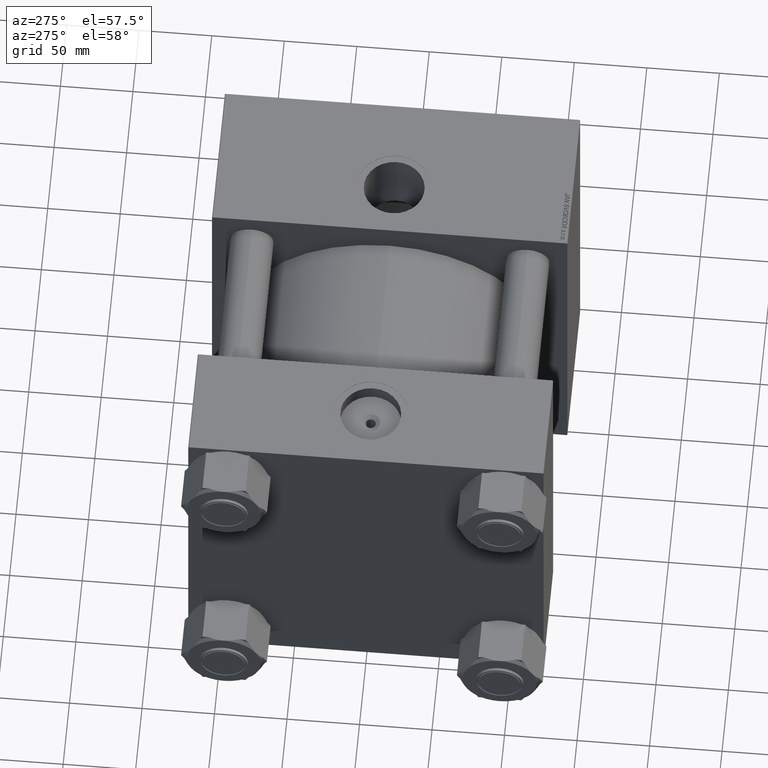
[diagram: clean part render]
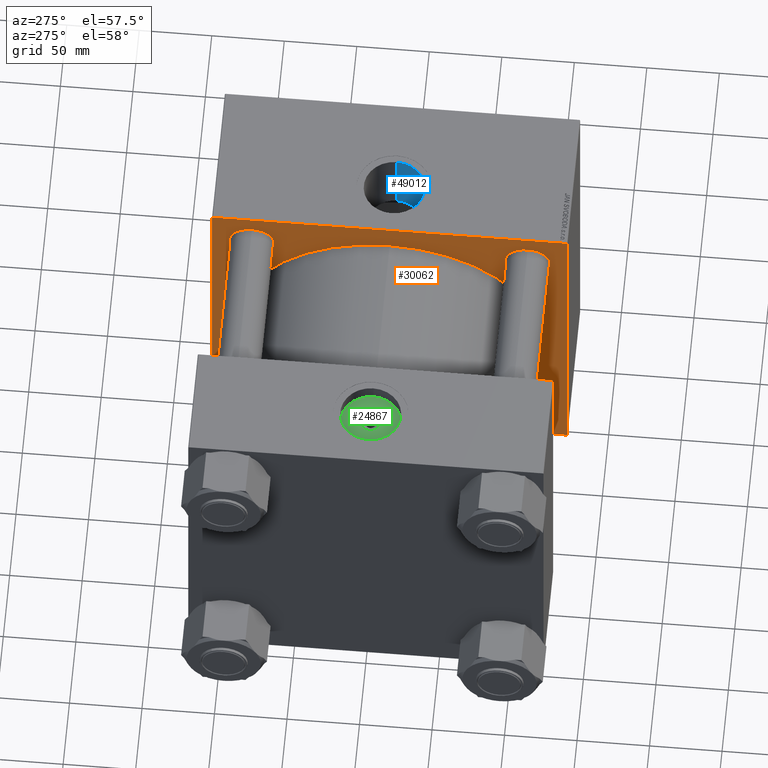
[diagram: same view with three faces highlighted in distinct colors, each labeled with its STEP entity id]
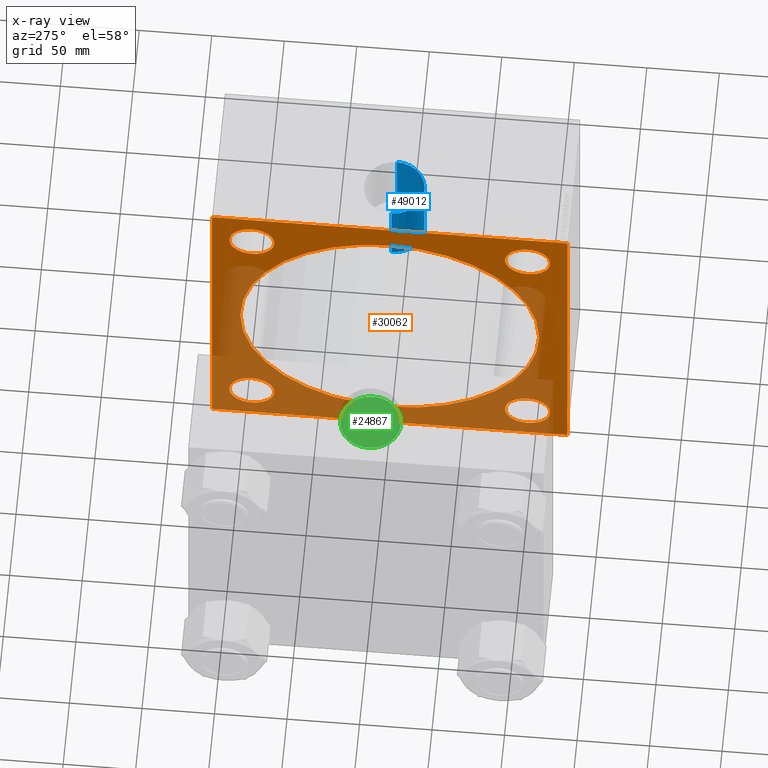
[diagram: x-ray of the same camera — body ghosted, the three highlighted faces saturated]
A machine part, auxiliary view with three faces highlighted in distinct colors.
The next image is the same camera in x-ray (body ghosted, the three faces saturated) — at least one of them is partly hidden behind the body in this view.
Their STEP definitions:

[orange] entity #30062 — the highlighted planar face has unit normal (-1, 0, 0).
#13 = EDGE_CURVE ( 'NONE', #2498, #2381, #9157, .T. ) ;
#227 = VERTEX_POINT ( 'NONE', #50983 ) ;
#559 = CIRCLE ( 'NONE', #25154, 15.50000000000000000 ) ;
#860 = EDGE_CURVE ( 'NONE', #17464, #38693, #7002, .T. ) ;
#2342 = ORIENTED_EDGE ( 'NONE', *, *, #860, .F. ) ;
#2381 = VERTEX_POINT ( 'NONE', #12859 ) ;
#2498 = VERTEX_POINT ( 'NONE', #30074 ) ;
#2747 = VECTOR ( 'NONE', #22340, 1000.000000000000114 ) ;
#2840 = CIRCLE ( 'NONE', #32541, 15.50000000000000000 ) ;
#3203 = DIRECTION ( 'NONE',  ( 0.000000000000000000, 0.000000000000000000, 1.000000000000000000 ) ) ;
#3824 = VECTOR ( 'NONE', #9534, 1000.000000000000000 ) ;
#3970 = DIRECTION ( 'NONE',  ( 0.000000000000000000, 0.000000000000000000, 1.000000000000000000 ) ) ;
#4055 = DIRECTION ( 'NONE',  ( 0.000000000000000000, 0.000000000000000000, 1.000000000000000000 ) ) ;
#5732 = DIRECTION ( 'NONE',  ( 0.000000000000000000, 0.000000000000000000, 1.000000000000000000 ) ) ;
#6446 = CIRCLE ( 'NONE', #40412, 15.50000000000000000 ) ;
#6452 = EDGE_CURVE ( 'NONE', #28850, #19836, #27134, .T. ) ;
#7002 = LINE ( 'NONE', #14705, #15999 ) ;
#7413 = DIRECTION ( 'NONE',  ( 1.000000000000000000, -0.000000000000000000, -0.000000000000000000 ) ) ;
#7641 = EDGE_CURVE ( 'NONE', #39300, #44572, #2840, .T. ) ;
#7656 = LINE ( 'NONE', #36346, #18664 ) ;
#7863 = VERTEX_POINT ( 'NONE', #20781 ) ;
#9157 = CIRCLE ( 'NONE', #16833, 15.50000000000000000 ) ;
#9326 = EDGE_LOOP ( 'NONE', ( #33349, #43950 ) ) ;
#9534 = DIRECTION ( 'NONE',  ( 0.000000000000000000, -5.664403186863042467E-17, -1.000000000000000000 ) ) ;
#9949 = CARTESIAN_POINT ( 'NONE',  ( 188.0000000000000000, -122.2500000000000000, 122.2500000000000000 ) ) ;
#9986 = CARTESIAN_POINT ( 'NONE',  ( 188.0000000000000000, 95.09999999999999432, -95.09999999999998010 ) ) ;
#10356 = DIRECTION ( 'NONE',  ( 1.000000000000000000, -0.000000000000000000, -0.000000000000000000 ) ) ;
#11048 = CARTESIAN_POINT ( 'NONE',  ( 188.0000000000000000, -2.602085213965210642E-15, 103.0000000000000000 ) ) ;
#11408 = CARTESIAN_POINT ( 'NONE',  ( 188.0000000000000000, -95.09999999999996589, -95.10000000000000853 ) ) ;
#11630 = AXIS2_PLACEMENT_3D ( 'NONE', #37807, #45513, #41273 ) ;
#11937 = AXIS2_PLACEMENT_3D ( 'NONE', #22736, #47173, #5732 ) ;
#12162 = ORIENTED_EDGE ( 'NONE', *, *, #18720, .T. ) ;
#12398 = CARTESIAN_POINT ( 'NONE',  ( 188.0000000000000000, 122.4999999999999716, -122.5000000000000000 ) ) ;
#12859 = CARTESIAN_POINT ( 'NONE',  ( 188.0000000000000000, 95.09999999999999432, 110.5999999999999801 ) ) ;
#13534 = CARTESIAN_POINT ( 'NONE',  ( 188.0000000000000000, -122.5000000000000000, 122.4999999999999858 ) ) ;
#14705 = CARTESIAN_POINT ( 'NONE',  ( 188.0000000000000000, 122.4999999999999716, 122.5000000000000142 ) ) ;
#14865 = EDGE_CURVE ( 'NONE', #7863, #227, #49670, .T. ) ;
#15212 = ORIENTED_EDGE ( 'NONE', *, *, #6452, .T. ) ;
#15999 = VECTOR ( 'NONE', #31713, 1000.000000000000000 ) ;
#16387 = VECTOR ( 'NONE', #39618, 1000.000000000000000 ) ;
#16659 = CARTESIAN_POINT ( 'NONE',  ( 188.0000000000000000, 95.09999999999999432, -79.59999999999998010 ) ) ;
#16774 = CARTESIAN_POINT ( 'NONE',  ( 188.0000000000000000, 121.9999999999999716, -122.5000000000000000 ) ) ;
#16833 = AXIS2_PLACEMENT_3D ( 'NONE', #26314, #47046, #26047 ) ;
#17464 = VERTEX_POINT ( 'NONE', #42880 ) ;
#17953 = DIRECTION ( 'NONE',  ( 0.000000000000000000, 0.000000000000000000, 1.000000000000000000 ) ) ;
#18079 = CARTESIAN_POINT ( 'NONE',  ( 188.0000000000000000, 122.2499999999999858, 122.2499999999999858 ) ) ;
#18664 = VECTOR ( 'NONE', #35560, 1000.000000000000000 ) ;
#18720 = EDGE_CURVE ( 'NONE', #45364, #48017, #26895, .T. ) ;
#18882 = LINE ( 'NONE', #18079, #2747 ) ;
#19220 = CARTESIAN_POINT ( 'NONE',  ( 188.0000000000000000, -122.5000000000000000, 122.0000000000000426 ) ) ;
#19836 = VERTEX_POINT ( 'NONE', #43145 ) ;
#19882 = CARTESIAN_POINT ( 'NONE',  ( 188.0000000000000000, -95.09999999999996589, -95.10000000000000853 ) ) ;
#19988 = ORIENTED_EDGE ( 'NONE', *, *, #31885, .T. ) ;
#20103 = ORIENTED_EDGE ( 'NONE', *, *, #22927, .T. ) ;
#20781 = CARTESIAN_POINT ( 'NONE',  ( 188.0000000000000000, -95.09999999999996589, -79.60000000000000853 ) ) ;
#20875 = EDGE_CURVE ( 'NONE', #227, #7863, #40565, .T. ) ;
#20882 = VECTOR ( 'NONE', #39807, 999.9999999999998863 ) ;
#21452 = VERTEX_POINT ( 'NONE', #34260 ) ;
#22340 = DIRECTION ( 'NONE',  ( 0.000000000000000000, 0.7071067811865474617, -0.7071067811865474617 ) ) ;
#22641 = EDGE_LOOP ( 'NONE', ( #37048, #24025, #40934, #20103, #2342, #45150, #15212, #24263 ) ) ;
#22681 = AXIS2_PLACEMENT_3D ( 'NONE', #34781, #7413, #39827 ) ;
#22684 = EDGE_CURVE ( 'NONE', #49568, #21452, #45059, .T. ) ;
#22736 = CARTESIAN_POINT ( 'NONE',  ( 188.0000000000000000, 0.000000000000000000, 0.000000000000000000 ) ) ;
#22886 = CARTESIAN_POINT ( 'NONE',  ( 188.0000000000000000, 1.001177681725252697E-14, -103.0000000000000000 ) ) ;
#22927 = EDGE_CURVE ( 'NONE', #41512, #38693, #46345, .T. ) ;
#23237 = EDGE_LOOP ( 'NONE', ( #37209, #35103 ) ) ;
#24025 = ORIENTED_EDGE ( 'NONE', *, *, #29815, .T. ) ;
#24263 = ORIENTED_EDGE ( 'NONE', *, *, #41093, .T. ) ;
#25016 = CARTESIAN_POINT ( 'NONE',  ( 188.0000000000000000, -122.5000000000000142, -122.0000000000000995 ) ) ;
#25154 = AXIS2_PLACEMENT_3D ( 'NONE', #34811, #10356, #3203 ) ;
#26047 = DIRECTION ( 'NONE',  ( 0.000000000000000000, 0.000000000000000000, 1.000000000000000000 ) ) ;
#26149 = DIRECTION ( 'NONE',  ( -0.000000000000000000, 0.7071067811865474617, 0.7071067811865474617 ) ) ;
#26314 = CARTESIAN_POINT ( 'NONE',  ( 188.0000000000000000, 95.09999999999999432, 95.09999999999998010 ) ) ;
#26895 = CIRCLE ( 'NONE', #11630, 103.0000000000000000 ) ;
#27051 = CARTESIAN_POINT ( 'NONE',  ( 188.0000000000000000, 122.2500000000016911, -122.2499999999982947 ) ) ;
#27134 = LINE ( 'NONE', #43336, #16387 ) ;
#27364 = AXIS2_PLACEMENT_3D ( 'NONE', #41558, #49294, #38085 ) ;
#27905 = VECTOR ( 'NONE', #26149, 1000.000000000000114 ) ;
#28233 = CARTESIAN_POINT ( 'NONE',  ( 188.0000000000000000, -95.09999999999996589, 95.10000000000000853 ) ) ;
#28526 = VERTEX_POINT ( 'NONE', #25016 ) ;
#28850 = VERTEX_POINT ( 'NONE', #31559 ) ;
#29815 = EDGE_CURVE ( 'NONE', #21452, #28526, #7656, .T. ) ;
#30062 = ADVANCED_FACE ( 'NONE', ( #34149, #30961, #42123, #34694, #42390, #46903 ), #30165, .T. ) ;
#30071 = EDGE_LOOP ( 'NONE', ( #12162, #42042 ) ) ;
#30074 = CARTESIAN_POINT ( 'NONE',  ( 188.0000000000000000, 95.09999999999999432, 79.59999999999998010 ) ) ;
#30165 = PLANE ( 'NONE',  #11937 ) ;
#30495 = ORIENTED_EDGE ( 'NONE', *, *, #41858, .T. ) ;
#30961 = FACE_BOUND ( 'NONE', #9326, .T. ) ;
#31559 = CARTESIAN_POINT ( 'NONE',  ( 188.0000000000000000, 122.4999999999999716, 122.0000000000000142 ) ) ;
#31713 = DIRECTION ( 'NONE',  ( 0.000000000000000000, -1.000000000000000000, -1.132880637372608986E-16 ) ) ;
#31885 = EDGE_CURVE ( 'NONE', #45002, #39047, #34015, .T. ) ;
#32030 = CIRCLE ( 'NONE', #22681, 15.50000000000000000 ) ;
#32372 = DIRECTION ( 'NONE',  ( 0.000000000000000000, 0.000000000000000000, 1.000000000000000000 ) ) ;
#32541 = AXIS2_PLACEMENT_3D ( 'NONE', #39931, #40186, #43896 ) ;
#32551 = EDGE_CURVE ( 'NONE', #48017, #45364, #46836, .T. ) ;
#32835 = ORIENTED_EDGE ( 'NONE', *, *, #41284, .T. ) ;
#33000 = EDGE_CURVE ( 'NONE', #17464, #28850, #18882, .T. ) ;
#33192 = CARTESIAN_POINT ( 'NONE',  ( 188.0000000000000000, -95.09999999999996589, 79.60000000000000853 ) ) ;
#33349 = ORIENTED_EDGE ( 'NONE', *, *, #47297, .T. ) ;
#34015 = CIRCLE ( 'NONE', #51877, 15.50000000000000000 ) ;
#34149 = FACE_BOUND ( 'NONE', #43182, .T. ) ;
#34260 = CARTESIAN_POINT ( 'NONE',  ( 188.0000000000000000, -122.0000000000000000, -122.5000000000000853 ) ) ;
#34422 = DIRECTION ( 'NONE',  ( 1.000000000000000000, -0.000000000000000000, -0.000000000000000000 ) ) ;
#34495 = LINE ( 'NONE', #13534, #3824 ) ;
#34694 = FACE_BOUND ( 'NONE', #23237, .T. ) ;
#34781 = CARTESIAN_POINT ( 'NONE',  ( 188.0000000000000000, 95.09999999999999432, 95.09999999999998010 ) ) ;
#34811 = CARTESIAN_POINT ( 'NONE',  ( 188.0000000000000000, -95.09999999999996589, 95.10000000000000853 ) ) ;
#35103 = ORIENTED_EDGE ( 'NONE', *, *, #20875, .T. ) ;
#35415 = DIRECTION ( 'NONE',  ( 1.000000000000000000, -0.000000000000000000, -0.000000000000000000 ) ) ;
#35560 = DIRECTION ( 'NONE',  ( 0.000000000000000000, -0.7071067811865671127, 0.7071067811865279218 ) ) ;
#36346 = CARTESIAN_POINT ( 'NONE',  ( 188.0000000000000000, -122.2499999999966462, -122.2500000000034390 ) ) ;
#37048 = ORIENTED_EDGE ( 'NONE', *, *, #22684, .T. ) ;
#37209 = ORIENTED_EDGE ( 'NONE', *, *, #14865, .T. ) ;
#37807 = CARTESIAN_POINT ( 'NONE',  ( 188.0000000000000000, -2.602085213965210642E-15, 0.000000000000000000 ) ) ;
#37969 = EDGE_CURVE ( 'NONE', #41512, #28526, #34495, .T. ) ;
#38085 = DIRECTION ( 'NONE',  ( 0.000000000000000000, 0.000000000000000000, -1.000000000000000000 ) ) ;
#38693 = VERTEX_POINT ( 'NONE', #46850 ) ;
#39047 = VERTEX_POINT ( 'NONE', #41409 ) ;
#39300 = VERTEX_POINT ( 'NONE', #16659 ) ;
#39415 = CARTESIAN_POINT ( 'NONE',  ( 188.0000000000000000, 95.09999999999999432, -110.5999999999999801 ) ) ;
#39618 = DIRECTION ( 'NONE',  ( 0.000000000000000000, 0.000000000000000000, -1.000000000000000000 ) ) ;
#39807 = DIRECTION ( 'NONE',  ( -0.000000000000000000, -0.7071067811865376918, -0.7071067811865574537 ) ) ;
#39827 = DIRECTION ( 'NONE',  ( 0.000000000000000000, 0.000000000000000000, 1.000000000000000000 ) ) ;
#39931 = CARTESIAN_POINT ( 'NONE',  ( 188.0000000000000000, 95.09999999999999432, -95.09999999999998010 ) ) ;
#40186 = DIRECTION ( 'NONE',  ( 1.000000000000000000, -0.000000000000000000, -0.000000000000000000 ) ) ;
#40341 = AXIS2_PLACEMENT_3D ( 'NONE', #19882, #52574, #32372 ) ;
#40366 = DIRECTION ( 'NONE',  ( 1.000000000000000000, -0.000000000000000000, -0.000000000000000000 ) ) ;
#40412 = AXIS2_PLACEMENT_3D ( 'NONE', #9986, #34422, #17953 ) ;
#40565 = CIRCLE ( 'NONE', #47344, 15.50000000000000000 ) ;
#40934 = ORIENTED_EDGE ( 'NONE', *, *, #37969, .F. ) ;
#41093 = EDGE_CURVE ( 'NONE', #19836, #49568, #47513, .T. ) ;
#41273 = DIRECTION ( 'NONE',  ( 0.000000000000000000, 0.000000000000000000, -1.000000000000000000 ) ) ;
#41284 = EDGE_CURVE ( 'NONE', #44572, #39300, #6446, .T. ) ;
#41329 = DIRECTION ( 'NONE',  ( 0.000000000000000000, -1.000000000000000000, -3.398641912117826466E-16 ) ) ;
#41409 = CARTESIAN_POINT ( 'NONE',  ( 188.0000000000000000, -95.09999999999996589, 110.6000000000000085 ) ) ;
#41512 = VERTEX_POINT ( 'NONE', #19220 ) ;
#41558 = CARTESIAN_POINT ( 'NONE',  ( 188.0000000000000000, -2.602085213965210642E-15, 0.000000000000000000 ) ) ;
#41858 = EDGE_CURVE ( 'NONE', #39047, #45002, #559, .T. ) ;
#42042 = ORIENTED_EDGE ( 'NONE', *, *, #32551, .T. ) ;
#42123 = FACE_BOUND ( 'NONE', #50023, .T. ) ;
#42390 = FACE_BOUND ( 'NONE', #30071, .T. ) ;
#42880 = CARTESIAN_POINT ( 'NONE',  ( 188.0000000000000000, 121.9999999999999716, 122.5000000000000142 ) ) ;
#43145 = CARTESIAN_POINT ( 'NONE',  ( 188.0000000000000000, 122.4999999999999716, -121.9999999999999858 ) ) ;
#43182 = EDGE_LOOP ( 'NONE', ( #30495, #19988 ) ) ;
#43336 = CARTESIAN_POINT ( 'NONE',  ( 188.0000000000000000, 122.4999999999999716, 122.5000000000000142 ) ) ;
#43896 = DIRECTION ( 'NONE',  ( 0.000000000000000000, 0.000000000000000000, 1.000000000000000000 ) ) ;
#43950 = ORIENTED_EDGE ( 'NONE', *, *, #13, .T. ) ;
#44572 = VERTEX_POINT ( 'NONE', #39415 ) ;
#44879 = VECTOR ( 'NONE', #41329, 1000.000000000000000 ) ;
#45002 = VERTEX_POINT ( 'NONE', #33192 ) ;
#45059 = LINE ( 'NONE', #12398, #44879 ) ;
#45150 = ORIENTED_EDGE ( 'NONE', *, *, #33000, .T. ) ;
#45364 = VERTEX_POINT ( 'NONE', #11048 ) ;
#45513 = DIRECTION ( 'NONE',  ( 1.000000000000000000, 0.000000000000000000, 0.000000000000000000 ) ) ;
#46283 = ORIENTED_EDGE ( 'NONE', *, *, #7641, .T. ) ;
#46345 = LINE ( 'NONE', #9949, #27905 ) ;
#46836 = CIRCLE ( 'NONE', #27364, 103.0000000000000000 ) ;
#46850 = CARTESIAN_POINT ( 'NONE',  ( 188.0000000000000000, -122.0000000000000568, 122.4999999999999858 ) ) ;
#46903 = FACE_OUTER_BOUND ( 'NONE', #22641, .T. ) ;
#47046 = DIRECTION ( 'NONE',  ( 1.000000000000000000, -0.000000000000000000, -0.000000000000000000 ) ) ;
#47173 = DIRECTION ( 'NONE',  ( -1.000000000000000000, 0.000000000000000000, 0.000000000000000000 ) ) ;
#47297 = EDGE_CURVE ( 'NONE', #2381, #2498, #32030, .T. ) ;
#47344 = AXIS2_PLACEMENT_3D ( 'NONE', #11408, #40366, #3970 ) ;
#47513 = LINE ( 'NONE', #27051, #20882 ) ;
#48017 = VERTEX_POINT ( 'NONE', #22886 ) ;
#49294 = DIRECTION ( 'NONE',  ( 1.000000000000000000, 0.000000000000000000, 0.000000000000000000 ) ) ;
#49568 = VERTEX_POINT ( 'NONE', #16774 ) ;
#49670 = CIRCLE ( 'NONE', #40341, 15.50000000000000000 ) ;
#50023 = EDGE_LOOP ( 'NONE', ( #46283, #32835 ) ) ;
#50983 = CARTESIAN_POINT ( 'NONE',  ( 188.0000000000000000, -95.09999999999996589, -110.6000000000000085 ) ) ;
#51877 = AXIS2_PLACEMENT_3D ( 'NONE', #28233, #35415, #4055 ) ;
#52574 = DIRECTION ( 'NONE',  ( 1.000000000000000000, -0.000000000000000000, -0.000000000000000000 ) ) ;

[blue] entity #49012 — the highlighted cylindrical surface (edge-blend (fillet) strip) has radius 20.96 mm, axis along (0, 0, -1).
#284 = CARTESIAN_POINT ( 'NONE',  ( 221.6212996415953000, -20.96019710479842857, 69.92617633883915573 ) ) ;
#805 = CARTESIAN_POINT ( 'NONE',  ( 210.2230388352013790, -16.62934786940848753, 71.08207608813650324 ) ) ;
#917 = VERTEX_POINT ( 'NONE', #50856 ) ;
#1312 = CARTESIAN_POINT ( 'NONE',  ( 242.0935977153022520, -8.673164555340028059, 72.48572227582828020 ) ) ;
#3488 = CARTESIAN_POINT ( 'NONE',  ( 202.0399999999999636, -1.387778780781445991E-14, 145.2999999999999829 ) ) ;
#4272 = CARTESIAN_POINT ( 'NONE',  ( 228.4601454297183238, -20.28258136509749932, 70.12628231920038502 ) ) ;
#4528 = CARTESIAN_POINT ( 'NONE',  ( 212.4913322302871279, -18.18753989658438996, 70.70244160941379619 ) ) ;
#4784 = CARTESIAN_POINT ( 'NONE',  ( 215.5893671943640015, -19.61814360589775674, 70.31502298797768447 ) ) ;
#5041 = CARTESIAN_POINT ( 'NONE',  ( 233.5290929603473842, -18.17440030520087291, 70.70571288897384932 ) ) ;
#5646 = AXIS2_PLACEMENT_3D ( 'NONE', #26926, #30905, #47390 ) ;
#6355 = FACE_OUTER_BOUND ( 'NONE', #14480, .T. ) ;
#6888 = DIRECTION ( 'NONE',  ( -1.000000000000000000, 0.000000000000000000, 0.000000000000000000 ) ) ;
#7152 = CARTESIAN_POINT ( 'NONE',  ( 222.9999999999999716, -1.387778780781445991E-14, 145.2999999999999829 ) ) ;
#7416 = B_SPLINE_CURVE_WITH_KNOTS ( 'NONE', 3,
 ( #36942, #49418, #37705, #41437, #45155, #24461, #8765, #1312, #17507, #16748, #32946, #24721, #9290, #25488, #37457, #33717, #49936, #5041, #29727, #28958, #4272, #20479, #9022, #28703, #36683, #284, #24974, #48907, #20991, #41172, #44903, #16491, #4784, #8512, #4528, #37196, #805, #25234, #17007, #13015, #30509, #14310, #14044, #33978, #46719, #22821, #51250, #35035, #22029, #25989, #50192, #10057 ),
 .UNSPECIFIED., .F., .F.,
 ( 4, 2, 2, 2, 2, 2, 2, 2, 2, 2, 2, 2, 2, 2, 2, 2, 2, 2, 2, 2, 2, 2, 2, 2, 2, 4 ),
 ( 0.06587899507149015677, 0.06793715541813938330, 0.06999531576478862371, 0.07411163645808710454, 0.07616979680473633108, 0.07822795715138555761, 0.08234427784468399680, 0.08440243819133318171, 0.08646059853798238048, 0.09057691923128075029, 0.09469323992457913397, 0.09675140027122831887, 0.09880956061787751765, 0.1029258813111758042, 0.1039549614845003411, 0.1049840416578248781, 0.1070422020044740075, 0.1111585226977722107, 0.1132166830444213124, 0.1152748433910704140, 0.1173330037377195156, 0.1193911640843686034, 0.1235074847776668067, 0.1255656451243159222, 0.1276238054709650238, 0.1317401261642632271 ),
 .UNSPECIFIED. ) ;
#8512 = CARTESIAN_POINT ( 'NONE',  ( 213.6952659423795353, -18.83117820539490950, 70.53143123999750230 ) ) ;
#8765 = CARTESIAN_POINT ( 'NONE',  ( 242.8807134585548511, -6.778603163634969064, 72.69570419330156597 ) ) ;
#9022 = CARTESIAN_POINT ( 'NONE',  ( 225.7671570199753148, -20.78801810710769260, 69.97759226753588280 ) ) ;
#9290 = CARTESIAN_POINT ( 'NONE',  ( 238.7905222449937810, -13.85099797244058628, 71.68071556930685517 ) ) ;
#9808 = EDGE_CURVE ( 'NONE', #31472, #917, #7416, .T. ) ;
#10057 = CARTESIAN_POINT ( 'NONE',  ( 202.0399999999999636, -1.610560222933687567E-14, 73.00000000000000000 ) ) ;
#10372 = EDGE_CURVE ( 'NONE', #38370, #917, #23131, .T. ) ;
#11440 = VECTOR ( 'NONE', #19690, 1000.000000000000000 ) ;
#13015 = CARTESIAN_POINT ( 'NONE',  ( 207.7051294626758704, -14.34747993836448288, 71.57786219154903051 ) ) ;
#14044 = CARTESIAN_POINT ( 'NONE',  ( 205.9649601165576485, -12.23101393647206514, 71.97037141782094238 ) ) ;
#14310 = CARTESIAN_POINT ( 'NONE',  ( 206.3777873889842738, -12.78639808919218801, 71.87347892161744767 ) ) ;
#14480 = EDGE_LOOP ( 'NONE', ( #34318, #50334, #46542, #47851 ) ) ;
#16491 = CARTESIAN_POINT ( 'NONE',  ( 216.2355398758888043, -19.85048979358304777, 70.24956875561315428 ) ) ;
#16748 = CARTESIAN_POINT ( 'NONE',  ( 241.1490998918291950, -10.50745506157026732, 72.24243353826487635 ) ) ;
#17007 = CARTESIAN_POINT ( 'NONE',  ( 208.6664467950246262, -15.30792271522880910, 71.37862452190249485 ) ) ;
#17507 = CARTESIAN_POINT ( 'NONE',  ( 241.8000542513875644, -9.292706758496022346, 72.40871091589835373 ) ) ;
#19690 = DIRECTION ( 'NONE',  ( 0.000000000000000000, 0.000000000000000000, -1.000000000000000000 ) ) ;
#20479 = CARTESIAN_POINT ( 'NONE',  ( 226.4463742243460445, -20.68605275160370738, 70.00790574102234132 ) ) ;
#20991 = CARTESIAN_POINT ( 'NONE',  ( 218.2334663649609183, -20.41375042419390695, 70.08770552287961664 ) ) ;
#21917 = EDGE_CURVE ( 'NONE', #32106, #31472, #35269, .T. ) ;
#22029 = CARTESIAN_POINT ( 'NONE',  ( 202.5821455851781820, -4.786000650757876507, 72.84607350777257295 ) ) ;
#22303 = DIRECTION ( 'NONE',  ( 0.000000000000000000, 0.000000000000000000, -1.000000000000000000 ) ) ;
#22821 = CARTESIAN_POINT ( 'NONE',  ( 203.3891219195750750, -7.429881023423288156, 72.62369188978864543 ) ) ;
#23131 = LINE ( 'NONE', #3488, #11440 ) ;
#23394 = CARTESIAN_POINT ( 'NONE',  ( 243.9599999999999795, -1.131092811680160736E-14, 122.2999999999999972 ) ) ;
#24441 = AXIS2_PLACEMENT_3D ( 'NONE', #7152, #22303, #6888 ) ;
#24461 = CARTESIAN_POINT ( 'NONE',  ( 243.2817238645624798, -5.468000323589479628, 72.80768269049441699 ) ) ;
#24721 = CARTESIAN_POINT ( 'NONE',  ( 239.6532372683194581, -12.80064943333325189, 71.87812324548927734 ) ) ;
#24974 = CARTESIAN_POINT ( 'NONE',  ( 220.2560640078206973, -20.82509494167162245, 69.96709075955770629 ) ) ;
#25234 = CARTESIAN_POINT ( 'NONE',  ( 209.1698886108219142, -15.76432574300271483, 71.27890841918058129 ) ) ;
#25488 = CARTESIAN_POINT ( 'NONE',  ( 237.3407223674005309, -15.30139099499403521, 71.38004774415902887 ) ) ;
#25989 = CARTESIAN_POINT ( 'NONE',  ( 202.1774154441112046, -2.762878381059121313, 72.96020431692140562 ) ) ;
#26926 = CARTESIAN_POINT ( 'NONE',  ( 222.9999999999999716, -1.387778780781445991E-14, 122.2999999999999972 ) ) ;
#28295 = CARTESIAN_POINT ( 'NONE',  ( 243.9599999999999795, 8.939817063969891153E-15, 73.00000000000000000 ) ) ;
#28703 = CARTESIAN_POINT ( 'NONE',  ( 224.3923027695314545, -20.92511285017575773, 69.93671974428271199 ) ) ;
#28958 = CARTESIAN_POINT ( 'NONE',  ( 229.7716453533519996, -19.88422182655822112, 70.24187966245939663 ) ) ;
#29727 = CARTESIAN_POINT ( 'NONE',  ( 232.3276446205177592, -18.82106543936009402, 70.53418626375813005 ) ) ;
#30509 = CARTESIAN_POINT ( 'NONE',  ( 207.2472530390070915, -13.84344217902598295, 71.67738874308588493 ) ) ;
#30905 = DIRECTION ( 'NONE',  ( -0.000000000000000000, -0.000000000000000000, -1.000000000000000000 ) ) ;
#31472 = VERTEX_POINT ( 'NONE', #28295 ) ;
#32106 = VERTEX_POINT ( 'NONE', #23394 ) ;
#32946 = CARTESIAN_POINT ( 'NONE',  ( 240.7934863802372263, -11.09863851081829367, 72.15365915882848924 ) ) ;
#33717 = CARTESIAN_POINT ( 'NONE',  ( 235.7710887859448974, -16.63397089278883101, 71.08100482846708701 ) ) ;
#33978 = CARTESIAN_POINT ( 'NONE',  ( 204.8222132668303175, -10.52446732438173171, 72.24654900596358686 ) ) ;
#34318 = ORIENTED_EDGE ( 'NONE', *, *, #46452, .F. ) ;
#35035 = CARTESIAN_POINT ( 'NONE',  ( 202.7504044797549057, -5.454963779267728796, 72.79894665177256741 ) ) ;
#35269 = LINE ( 'NONE', #51215, #38874 ) ;
#36683 = CARTESIAN_POINT ( 'NONE',  ( 223.6938400997032943, -20.95990112699987051, 69.92626505653647939 ) ) ;
#36942 = CARTESIAN_POINT ( 'NONE',  ( 243.9599999999999795, 8.939817063969891153E-15, 73.00000000000000000 ) ) ;
#37196 = CARTESIAN_POINT ( 'NONE',  ( 210.7740666760411443, -17.03885063037197511, 70.98473803185774500 ) ) ;
#37457 = CARTESIAN_POINT ( 'NONE',  ( 236.8286780104702416, -15.76570204346668547, 71.27861442370591760 ) ) ;
#37705 = CARTESIAN_POINT ( 'NONE',  ( 243.9263940180627799, -1.371452482010626639, 72.99032939255260999 ) ) ;
#37899 = CARTESIAN_POINT ( 'NONE',  ( 202.0399999999999636, -1.387778780781445991E-14, 122.2999999999999972 ) ) ;
#38370 = VERTEX_POINT ( 'NONE', #37899 ) ;
#38874 = VECTOR ( 'NONE', #47489, 1000.000000000000000 ) ;
#40489 = CIRCLE ( 'NONE', #5646, 20.96000000000000796 ) ;
#41172 = CARTESIAN_POINT ( 'NONE',  ( 217.5630264307337143, -20.24550240627127451, 70.13649053211051410 ) ) ;
#41437 = CARTESIAN_POINT ( 'NONE',  ( 243.7914293043783971, -2.740678016597591693, 72.95174947013322253 ) ) ;
#44903 = CARTESIAN_POINT ( 'NONE',  ( 217.2279452956803425, -20.15253212239845482, 70.16328393757225967 ) ) ;
#45155 = CARTESIAN_POINT ( 'NONE',  ( 243.6896154434917037, -3.426784267314502141, 72.92270957088685179 ) ) ;
#46452 = EDGE_CURVE ( 'NONE', #32106, #38370, #40489, .T. ) ;
#46542 = ORIENTED_EDGE ( 'NONE', *, *, #9808, .T. ) ;
#46719 = CARTESIAN_POINT ( 'NONE',  ( 204.1785217651144251, -9.324475399923368713, 72.41318375418211417 ) ) ;
#47004 = CYLINDRICAL_SURFACE ( 'NONE', #24441, 20.96000000000000796 ) ;
#47390 = DIRECTION ( 'NONE',  ( 1.000000000000000000, 0.000000000000000000, 0.000000000000000000 ) ) ;
#47489 = DIRECTION ( 'NONE',  ( 0.000000000000000000, 0.000000000000000000, -1.000000000000000000 ) ) ;
#47851 = ORIENTED_EDGE ( 'NONE', *, *, #10372, .F. ) ;
#48907 = CARTESIAN_POINT ( 'NONE',  ( 218.5697173171924703, -20.48932540627172116, 70.06562953716161246 ) ) ;
#49012 = ADVANCED_FACE ( 'NONE', ( #6355 ), #47004, .F. ) ;
#49418 = CARTESIAN_POINT ( 'NONE',  ( 243.9600000000001216, -0.6860956652081730001, 73.00000000000001421 ) ) ;
#49936 = CARTESIAN_POINT ( 'NONE',  ( 235.2240939491740335, -17.03981758637977606, 70.98447916284816017 ) ) ;
#50192 = CARTESIAN_POINT ( 'NONE',  ( 202.0400000000000205, -1.392399180500920375, 73.00000000000001421 ) ) ;
#50334 = ORIENTED_EDGE ( 'NONE', *, *, #21917, .T. ) ;
#50856 = CARTESIAN_POINT ( 'NONE',  ( 202.0399999999999636, -1.610560222933687567E-14, 73.00000000000000000 ) ) ;
#51215 = CARTESIAN_POINT ( 'NONE',  ( 243.9599999999999795, -1.131092811680160736E-14, 145.2999999999999829 ) ) ;
#51250 = CARTESIAN_POINT ( 'NONE',  ( 203.1553683602674027, -6.781839252738032897, 72.68734360114403614 ) ) ;

[green] entity #24867 — the highlighted planar face has unit normal (0, 0, 1).
#730 = DIRECTION ( 'NONE',  ( 1.000000000000000000, 0.000000000000000000, 0.000000000000000000 ) ) ;
#1262 = AXIS2_PLACEMENT_3D ( 'NONE', #4065, #20278, #36481 ) ;
#1973 = ORIENTED_EDGE ( 'NONE', *, *, #19045, .T. ) ;
#2526 = AXIS2_PLACEMENT_3D ( 'NONE', #49400, #12992, #29439 ) ;
#4065 = CARTESIAN_POINT ( 'NONE',  ( 38.00000000000000000, -2.255140518769849538E-14, 111.6999999999999886 ) ) ;
#4736 = VERTEX_POINT ( 'NONE', #14288 ) ;
#6023 = CIRCLE ( 'NONE', #12803, 6.640000000000028102 ) ;
#6819 = CARTESIAN_POINT ( 'NONE',  ( 17.03999999999999915, -1.998454549668564441E-14, 111.6999999999999886 ) ) ;
#8950 = CARTESIAN_POINT ( 'NONE',  ( 58.96000000000000085, -2.255140518769849538E-14, 111.6999999999999886 ) ) ;
#12469 = AXIS2_PLACEMENT_3D ( 'NONE', #33278, #20810, #38039 ) ;
#12803 = AXIS2_PLACEMENT_3D ( 'NONE', #34547, #18870, #42768 ) ;
#12992 = DIRECTION ( 'NONE',  ( 0.000000000000000000, 0.000000000000000000, 1.000000000000000000 ) ) ;
#13325 = CIRCLE ( 'NONE', #12469, 20.96000000000000085 ) ;
#14001 = VERTEX_POINT ( 'NONE', #8950 ) ;
#14252 = CARTESIAN_POINT ( 'NONE',  ( 31.35999999999997101, -2.173823971306465248E-14, 111.6999999999999886 ) ) ;
#14288 = CARTESIAN_POINT ( 'NONE',  ( 44.64000000000002899, -2.255140518769849538E-14, 111.6999999999999886 ) ) ;
#18870 = DIRECTION ( 'NONE',  ( -0.000000000000000000, -0.000000000000000000, -1.000000000000000000 ) ) ;
#19045 = EDGE_CURVE ( 'NONE', #50943, #14001, #13325, .T. ) ;
#20278 = DIRECTION ( 'NONE',  ( 0.000000000000000000, 0.000000000000000000, 1.000000000000000000 ) ) ;
#20810 = DIRECTION ( 'NONE',  ( 0.000000000000000000, 0.000000000000000000, 1.000000000000000000 ) ) ;
#20906 = CIRCLE ( 'NONE', #34467, 6.640000000000028102 ) ;
#24867 = ADVANCED_FACE ( 'NONE', ( #29184, #42176 ), #33180, .T. ) ;
#25330 = EDGE_LOOP ( 'NONE', ( #26990, #51908 ) ) ;
#26990 = ORIENTED_EDGE ( 'NONE', *, *, #31997, .T. ) ;
#27555 = CIRCLE ( 'NONE', #1262, 20.96000000000000085 ) ;
#29184 = FACE_BOUND ( 'NONE', #25330, .T. ) ;
#29439 = DIRECTION ( 'NONE',  ( 1.000000000000000000, 0.000000000000000000, -0.000000000000000000 ) ) ;
#31997 = EDGE_CURVE ( 'NONE', #4736, #48304, #6023, .T. ) ;
#33132 = CARTESIAN_POINT ( 'NONE',  ( 38.00000000000000000, -2.255140518769849538E-14, 111.6999999999999886 ) ) ;
#33180 = PLANE ( 'NONE',  #2526 ) ;
#33278 = CARTESIAN_POINT ( 'NONE',  ( 38.00000000000000000, -2.255140518769849538E-14, 111.6999999999999886 ) ) ;
#34467 = AXIS2_PLACEMENT_3D ( 'NONE', #33132, #45593, #730 ) ;
#34547 = CARTESIAN_POINT ( 'NONE',  ( 38.00000000000000000, -2.255140518769849538E-14, 111.6999999999999886 ) ) ;
#36481 = DIRECTION ( 'NONE',  ( 1.000000000000000000, 0.000000000000000000, 0.000000000000000000 ) ) ;
#37566 = EDGE_CURVE ( 'NONE', #14001, #50943, #27555, .T. ) ;
#38039 = DIRECTION ( 'NONE',  ( 1.000000000000000000, 0.000000000000000000, 0.000000000000000000 ) ) ;
#42176 = FACE_OUTER_BOUND ( 'NONE', #52001, .T. ) ;
#42425 = ORIENTED_EDGE ( 'NONE', *, *, #37566, .T. ) ;
#42768 = DIRECTION ( 'NONE',  ( 1.000000000000000000, 0.000000000000000000, 0.000000000000000000 ) ) ;
#45282 = EDGE_CURVE ( 'NONE', #48304, #4736, #20906, .T. ) ;
#45593 = DIRECTION ( 'NONE',  ( -0.000000000000000000, -0.000000000000000000, -1.000000000000000000 ) ) ;
#48304 = VERTEX_POINT ( 'NONE', #14252 ) ;
#49400 = CARTESIAN_POINT ( 'NONE',  ( 38.00000000000000000, -2.255140518769849538E-14, 111.6999999999999886 ) ) ;
#50943 = VERTEX_POINT ( 'NONE', #6819 ) ;
#51908 = ORIENTED_EDGE ( 'NONE', *, *, #45282, .T. ) ;
#52001 = EDGE_LOOP ( 'NONE', ( #42425, #1973 ) ) ;